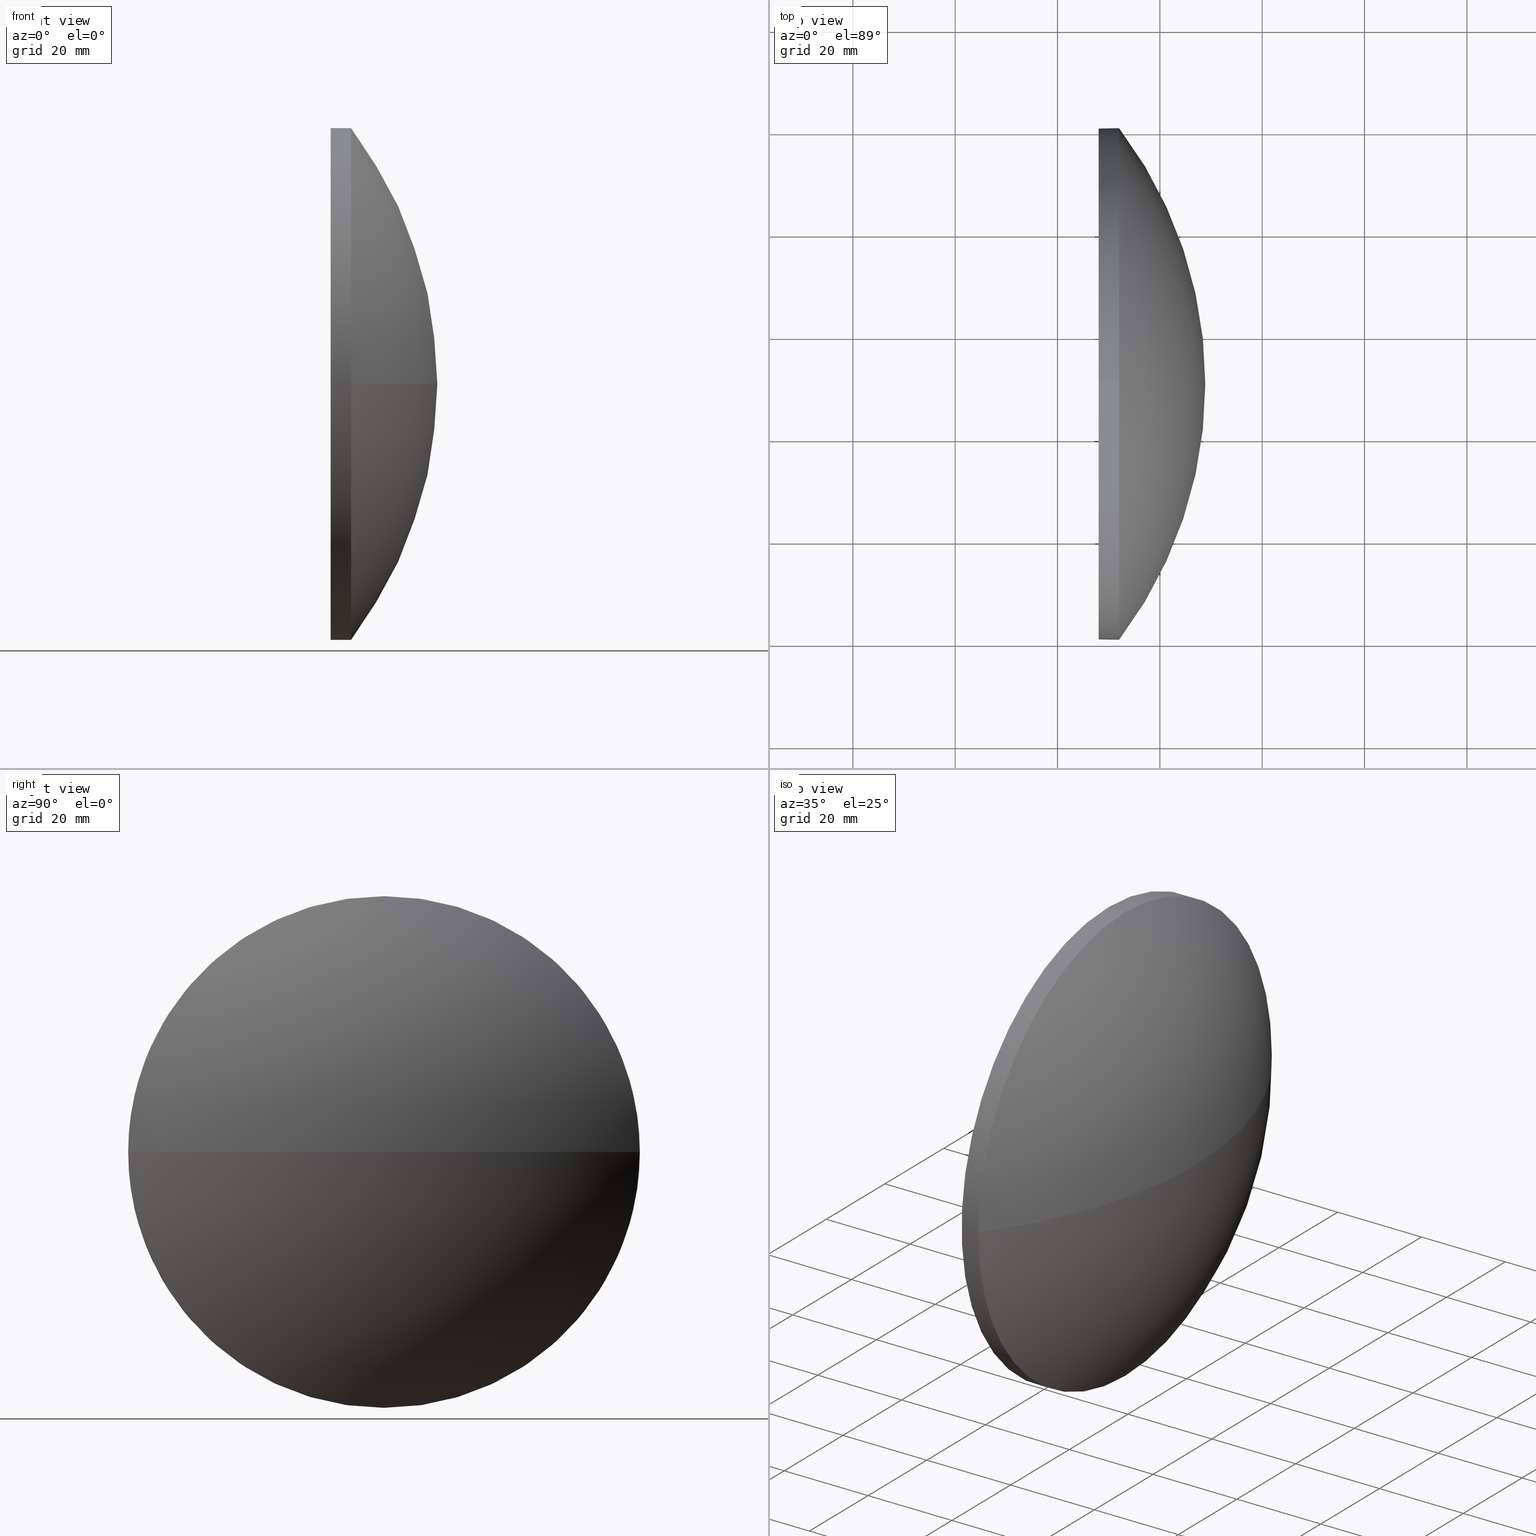
[diagram: canonical four-view strip — front | top / right | iso, engineering-drawing reading convention]
A machine part, canonical four-view strip (front | top / right | iso — engineering-drawing reading convention). The complete STEP part file that produces these views, byte-faithful:
ISO-10303-21;
HEADER;
FILE_DESCRIPTION (( 'STEP AP214' ),
    '1' );
FILE_NAME ('100083.STEP',
    '2019-05-13T01:20:34',
    ( '' ),
    ( '' ),
    'SwSTEP 2.0',
    'SolidWorks 2016',
    '' );
FILE_SCHEMA (( 'AUTOMOTIVE_DESIGN' ));
ENDSEC;

DATA;
#1 = SURFACE_STYLE_FILL_AREA ( #58 ) ;
#2 = DIRECTION ( 'NONE',  ( 0.0000000000000000000, 0.0000000000000000000, 1.000000000000000000 ) ) ;
#3 = ORIENTED_EDGE ( 'NONE', *, *, #22, .T. ) ;
#4 = ORIENTED_EDGE ( 'NONE', *, *, #33, .F. ) ;
#5 = AXIS2_PLACEMENT_3D ( 'NONE', #85, #70, #136 ) ;
#6 = CIRCLE ( 'NONE', #172, 49.99999999999999300 ) ;
#7 = PRODUCT_DEFINITION_FORMATION_WITH_SPECIFIED_SOURCE ( '�κ�', '', #158, .NOT_KNOWN. ) ;
#8 = VERTEX_POINT ( 'NONE', #71 ) ;
#9 =( NAMED_UNIT ( * ) PLANE_ANGLE_UNIT ( ) SI_UNIT ( $, .RADIAN. ) );
#10 = SURFACE_SIDE_STYLE ('',( #1 ) ) ;
#11 = AXIS2_PLACEMENT_3D ( 'NONE', #26, #122, #140 ) ;
#12 = PRODUCT_DEFINITION_SHAPE ( 'NONE', 'NONE',  #103 ) ;
#13 = FILL_AREA_STYLE ('',( #114 ) ) ;
#14 = VERTEX_POINT ( 'NONE', #164 ) ;
#15 = APPLICATION_CONTEXT ( 'automotive_design' ) ;
#16 =( NAMED_UNIT ( * ) SI_UNIT ( $, .STERADIAN. ) SOLID_ANGLE_UNIT ( ) );
#17 = CARTESIAN_POINT ( 'NONE',  ( 589.4330370124314400, 50.38150423912338700, 0.0000000000000000000 ) ) ;
#18 = CARTESIAN_POINT ( 'NONE',  ( 0.0000000000000000000, 0.0000000000000000000, 0.0000000000000000000 ) ) ;
#19 = AXIS2_PLACEMENT_3D ( 'NONE', #154, #179, #45 ) ;
#20 = DIRECTION ( 'NONE',  ( -0.0000000000000000000, 0.0000000000000000000, -1.000000000000000000 ) ) ;
#21 = PRESENTATION_LAYER_ASSIGNMENT (  '', '', ( #182 ) ) ;
#22 = EDGE_CURVE ( 'NONE', #112, #8, #82, .T. ) ;
#23 =( GEOMETRIC_REPRESENTATION_CONTEXT ( 3 ) GLOBAL_UNCERTAINTY_ASSIGNED_CONTEXT ( ( #89 ) ) GLOBAL_UNIT_ASSIGNED_CONTEXT ( ( #47, #128, #184 ) ) REPRESENTATION_CONTEXT ( 'NONE', 'WORKASPACE' ) );
#24 = DIRECTION ( 'NONE',  ( -1.000000000000000000, -0.0000000000000000000, -0.0000000000000000000 ) ) ;
#25 = VECTOR ( 'NONE', #66, 1000.000000000000000 ) ;
#26 = CARTESIAN_POINT ( 'NONE',  ( 589.4330370124314400, 50.38150423912338700, 0.0000000000000000000 ) ) ;
#27 = DIRECTION ( 'NONE',  ( -0.0000000000000000000, 0.0000000000000000000, 1.000000000000000000 ) ) ;
#28 = STYLED_ITEM ( 'NONE', ( #142 ), #97 ) ;
#29 = AXIS2_PLACEMENT_3D ( 'NONE', #173, #119, #51 ) ;
#30 = APPLICATION_CONTEXT ( 'automotive_design' ) ;
#31 = DIRECTION ( 'NONE',  ( -1.000000000000000000, -0.0000000000000000000, -0.0000000000000000000 ) ) ;
#32 = DIRECTION ( 'NONE',  ( 0.0000000000000000000, 0.0000000000000000000, 1.000000000000000000 ) ) ;
#33 = EDGE_CURVE ( 'NONE', #177, #112, #183, .T. ) ;
#34 = EDGE_LOOP ( 'NONE', ( #134, #42, #146, #170 ) ) ;
#35 = AXIS2_PLACEMENT_3D ( 'NONE', #18, #141, #156 ) ;
#36 = CIRCLE ( 'NONE', #29, 49.99999999999999300 ) ;
#37 = EDGE_LOOP ( 'NONE', ( #75, #96, #149, #99 ) ) ;
#38 = PRESENTATION_LAYER_ASSIGNMENT (  '', '', ( #28 ) ) ;
#39 = CIRCLE ( 'NONE', #73, 49.99999999999999300 ) ;
#40 = MECHANICAL_DESIGN_GEOMETRIC_PRESENTATION_REPRESENTATION (  '', ( #182 ), #53 ) ;
#41 = EDGE_LOOP ( 'NONE', ( #4, #79, #120, #106, #167 ) ) ;
#42 = ORIENTED_EDGE ( 'NONE', *, *, #138, .T. ) ;
#43 = EDGE_CURVE ( 'NONE', #8, #112, #78, .T. ) ;
#44 = DIRECTION ( 'NONE',  ( 1.000000000000000000, 0.0000000000000000000, 0.0000000000000000000 ) ) ;
#45 = DIRECTION ( 'NONE',  ( 0.0000000000000000000, 0.0000000000000000000, -1.000000000000000000 ) ) ;
#46 = SPHERICAL_SURFACE ( 'NONE', #5, 82.60897626112760900 ) ;
#47 =( LENGTH_UNIT ( ) NAMED_UNIT ( * ) SI_UNIT ( .MILLI., .METRE. ) );
#48 = SURFACE_STYLE_USAGE ( .BOTH. , #111 ) ;
#49 = ORIENTED_EDGE ( 'NONE', *, *, #33, .T. ) ;
#50 = ADVANCED_FACE ( 'NONE', ( #115 ), #46, .T. ) ;
#51 = DIRECTION ( 'NONE',  ( 0.0000000000000000000, 0.0000000000000000000, 1.000000000000000000 ) ) ;
#52 = AXIS2_PLACEMENT_3D ( 'NONE', #93, #105, #151 ) ;
#53 =( GEOMETRIC_REPRESENTATION_CONTEXT ( 3 ) GLOBAL_UNCERTAINTY_ASSIGNED_CONTEXT ( ( #132 ) ) GLOBAL_UNIT_ASSIGNED_CONTEXT ( ( #168, #155, #16 ) ) REPRESENTATION_CONTEXT ( 'NONE', 'WORKASPACE' ) );
#54 = SURFACE_STYLE_FILL_AREA ( #13 ) ;
#55 = DIRECTION ( 'NONE',  ( 0.0000000000000000000, 1.224646799147353200E-016, -1.000000000000000000 ) ) ;
#56 = ORIENTED_EDGE ( 'NONE', *, *, #102, .F. ) ;
#57 = CARTESIAN_POINT ( 'NONE',  ( 546.2818195196480200, 50.38150423912338000, 0.0000000000000000000 ) ) ;
#58 = FILL_AREA_STYLE ('',( #94 ) ) ;
#59 = VERTEX_POINT ( 'NONE', #139 ) ;
#60 = COLOUR_RGB ( '',1.000000000000000000, 1.000000000000000000, 1.000000000000000000 ) ;
#61 = DIRECTION ( 'NONE',  ( 0.0000000000000000000, 0.0000000000000000000, 1.000000000000000000 ) ) ;
#62 = ADVANCED_FACE ( 'NONE', ( #131 ), #124, .F. ) ;
#63 = DIRECTION ( 'NONE',  ( 0.0000000000000000000, 0.0000000000000000000, 1.000000000000000000 ) ) ;
#64 = CARTESIAN_POINT ( 'NONE',  ( 612.0407957807756200, 50.38150423912338700, 0.0000000000000000000 ) ) ;
#65 = MECHANICAL_DESIGN_GEOMETRIC_PRESENTATION_REPRESENTATION (  '', ( #28 ), #133 ) ;
#66 = DIRECTION ( 'NONE',  ( -1.000000000000000000, -0.0000000000000000000, -0.0000000000000000000 ) ) ;
#67 = ORIENTED_EDGE ( 'NONE', *, *, #43, .T. ) ;
#68 = CIRCLE ( 'NONE', #135, 82.60897626112759400 ) ;
#69 = PRODUCT_RELATED_PRODUCT_CATEGORY ( 'part', '', ( #158 ) ) ;
#70 = DIRECTION ( 'NONE',  ( -0.0000000000000000000, 0.0000000000000000000, -1.000000000000000000 ) ) ;
#71 = CARTESIAN_POINT ( 'NONE',  ( 608.0407957807756200, 50.38150423912338700, 49.99999999999999300 ) ) ;
#72 =( LENGTH_UNIT ( ) NAMED_UNIT ( * ) SI_UNIT ( .MILLI., .METRE. ) );
#73 = AXIS2_PLACEMENT_3D ( 'NONE', #64, #127, #61 ) ;
#74 = APPLICATION_PROTOCOL_DEFINITION ( 'draft international standard', 'automotive_design', 1998, #15 ) ;
#75 = ORIENTED_EDGE ( 'NONE', *, *, #138, .F. ) ;
#76 = COLOUR_RGB ( '',1.000000000000000000, 1.000000000000000000, 1.000000000000000000 ) ;
#77 = DIRECTION ( 'NONE',  ( 0.0000000000000000000, 1.000000000000000000, 0.0000000000000000000 ) ) ;
#78 = CIRCLE ( 'NONE', #52, 49.99999999999999300 ) ;
#79 = ORIENTED_EDGE ( 'NONE', *, *, #116, .T. ) ;
#80 = CARTESIAN_POINT ( 'NONE',  ( 546.2818195196480200, 50.38150423912338000, 0.0000000000000000000 ) ) ;
#81 = AXIS2_PLACEMENT_3D ( 'NONE', #144, #31, #32 ) ;
#82 = CIRCLE ( 'NONE', #157, 49.99999999999999300 ) ;
#83 = CARTESIAN_POINT ( 'NONE',  ( 608.0407957807756200, 50.38150423912338700, 0.0000000000000000000 ) ) ;
#84 = ORIENTED_EDGE ( 'NONE', *, *, #43, .F. ) ;
#85 = CARTESIAN_POINT ( 'NONE',  ( 546.2818195196480200, 50.38150423912338000, 0.0000000000000000000 ) ) ;
#86 = CARTESIAN_POINT ( 'NONE',  ( 612.0407957807756200, 100.3815042391234000, 0.0000000000000000000 ) ) ;
#87 = SPHERICAL_SURFACE ( 'NONE', #163, 82.60897626112760900 ) ;
#88 = AXIS2_PLACEMENT_3D ( 'NONE', #57, #27, #44 ) ;
#89 = UNCERTAINTY_MEASURE_WITH_UNIT (LENGTH_MEASURE( 1.000000000000000100E-005 ), #47, 'distance_accuracy_value', 'NONE');
#90 = EDGE_LOOP ( 'NONE', ( #145, #49, #84, #56, #108 ) ) ;
#91 = DIRECTION ( 'NONE',  ( -1.000000000000000000, -0.0000000000000000000, -0.0000000000000000000 ) ) ;
#92 = CARTESIAN_POINT ( 'NONE',  ( 589.4330370124314400, 50.38150423912339400, -49.99999999999999300 ) ) ;
#93 = CARTESIAN_POINT ( 'NONE',  ( 608.0407957807756200, 50.38150423912338700, 0.0000000000000000000 ) ) ;
#94 = FILL_AREA_STYLE_COLOUR ( '', #76 ) ;
#95 = CARTESIAN_POINT ( 'NONE',  ( 628.8907957807756500, 50.38150423912338700, 0.0000000000000000000 ) ) ;
#96 = ORIENTED_EDGE ( 'NONE', *, *, #123, .T. ) ;
#97 = MANIFOLD_SOLID_BREP ( '��ת1', #185 ) ;
#98 = ADVANCED_FACE ( 'NONE', ( #148 ), #104, .T. ) ;
#99 = ORIENTED_EDGE ( 'NONE', *, *, #165, .F. ) ;
#100 = CARTESIAN_POINT ( 'NONE',  ( 589.4330370124314400, 50.38150423912338700, 49.99999999999999300 ) ) ;
#101 = EDGE_LOOP ( 'NONE', ( #67, #3 ) ) ;
#102 = EDGE_CURVE ( 'NONE', #59, #8, #176, .T. ) ;
#103 = PRODUCT_DEFINITION ( 'δ֪', '', #7, #171 ) ;
#104 = CYLINDRICAL_SURFACE ( 'NONE', #11, 49.99999999999999300 ) ;
#105 = DIRECTION ( 'NONE',  ( -1.000000000000000000, -0.0000000000000000000, -0.0000000000000000000 ) ) ;
#106 = ORIENTED_EDGE ( 'NONE', *, *, #102, .T. ) ;
#107 =( NAMED_UNIT ( * ) SI_UNIT ( $, .STERADIAN. ) SOLID_ANGLE_UNIT ( ) );
#108 = ORIENTED_EDGE ( 'NONE', *, *, #180, .T. ) ;
#109 = SURFACE_STYLE_USAGE ( .BOTH. , #10 ) ;
#110 = FACE_OUTER_BOUND ( 'NONE', #41, .T. ) ;
#111 = SURFACE_SIDE_STYLE ('',( #54 ) ) ;
#112 = VERTEX_POINT ( 'NONE', #118 ) ;
#113 = ADVANCED_FACE ( 'NONE', ( #159 ), #87, .T. ) ;
#114 = FILL_AREA_STYLE_COLOUR ( '', #60 ) ;
#115 = FACE_OUTER_BOUND ( 'NONE', #37, .T. ) ;
#116 = EDGE_CURVE ( 'NONE', #177, #14, #6, .T. ) ;
#117 = CYLINDRICAL_SURFACE ( 'NONE', #166, 49.99999999999999300 ) ;
#118 = CARTESIAN_POINT ( 'NONE',  ( 608.0407957807756200, 50.38150423912339400, -49.99999999999999300 ) ) ;
#119 = DIRECTION ( 'NONE',  ( -1.000000000000000000, -0.0000000000000000000, -0.0000000000000000000 ) ) ;
#120 = ORIENTED_EDGE ( 'NONE', *, *, #165, .T. ) ;
#121 = CIRCLE ( 'NONE', #81, 49.99999999999999300 ) ;
#122 = DIRECTION ( 'NONE',  ( -1.000000000000000000, -0.0000000000000000000, -0.0000000000000000000 ) ) ;
#123 = EDGE_CURVE ( 'NONE', #152, #174, #181, .T. ) ;
#124 = PLANE ( 'NONE',  #19 ) ;
#125 = APPLICATION_PROTOCOL_DEFINITION ( 'draft international standard', 'automotive_design', 1998, #30 ) ;
#126 = VECTOR ( 'NONE', #178, 1000.000000000000000 ) ;
#127 = DIRECTION ( 'NONE',  ( -1.000000000000000000, -0.0000000000000000000, -0.0000000000000000000 ) ) ;
#128 =( NAMED_UNIT ( * ) PLANE_ANGLE_UNIT ( ) SI_UNIT ( $, .RADIAN. ) );
#129 = DIRECTION ( 'NONE',  ( -1.000000000000000000, -0.0000000000000000000, -0.0000000000000000000 ) ) ;
#130 = ADVANCED_BREP_SHAPE_REPRESENTATION ( '100083', ( #97, #35 ), #23 ) ;
#131 = FACE_OUTER_BOUND ( 'NONE', #101, .T. ) ;
#132 = UNCERTAINTY_MEASURE_WITH_UNIT (LENGTH_MEASURE( 1.000000000000000100E-005 ), #168, 'distance_accuracy_value', 'NONE');
#133 =( GEOMETRIC_REPRESENTATION_CONTEXT ( 3 ) GLOBAL_UNCERTAINTY_ASSIGNED_CONTEXT ( ( #153 ) ) GLOBAL_UNIT_ASSIGNED_CONTEXT ( ( #72, #9, #107 ) ) REPRESENTATION_CONTEXT ( 'NONE', 'WORKASPACE' ) );
#134 = ORIENTED_EDGE ( 'NONE', *, *, #123, .F. ) ;
#135 = AXIS2_PLACEMENT_3D ( 'NONE', #80, #55, #150 ) ;
#136 = DIRECTION ( 'NONE',  ( 0.0000000000000000000, 1.000000000000000000, 0.0000000000000000000 ) ) ;
#137 = DIRECTION ( 'NONE',  ( 0.0000000000000000000, 0.0000000000000000000, 1.000000000000000000 ) ) ;
#138 = EDGE_CURVE ( 'NONE', #152, #14, #68, .T. ) ;
#139 = CARTESIAN_POINT ( 'NONE',  ( 612.0407957807756200, 50.38150423912338700, 49.99999999999999300 ) ) ;
#140 = DIRECTION ( 'NONE',  ( 0.0000000000000000000, 0.0000000000000000000, 1.000000000000000000 ) ) ;
#141 = DIRECTION ( 'NONE',  ( 0.0000000000000000000, 0.0000000000000000000, 1.000000000000000000 ) ) ;
#142 = PRESENTATION_STYLE_ASSIGNMENT (( #109 ) ) ;
#143 = PRODUCT_CONTEXT ( 'NONE', #30, 'mechanical' ) ;
#144 = CARTESIAN_POINT ( 'NONE',  ( 612.0407957807756200, 50.38150423912338700, 0.0000000000000000000 ) ) ;
#145 = ORIENTED_EDGE ( 'NONE', *, *, #162, .T. ) ;
#146 = ORIENTED_EDGE ( 'NONE', *, *, #116, .F. ) ;
#147 = CARTESIAN_POINT ( 'NONE',  ( 546.2818195196480200, 50.38150423912338000, 0.0000000000000000000 ) ) ;
#148 = FACE_OUTER_BOUND ( 'NONE', #90, .T. ) ;
#149 = ORIENTED_EDGE ( 'NONE', *, *, #180, .F. ) ;
#150 = DIRECTION ( 'NONE',  ( 0.0000000000000000000, 1.000000000000000000, 1.224646799147353500E-016 ) ) ;
#151 = DIRECTION ( 'NONE',  ( 0.0000000000000000000, 0.0000000000000000000, 1.000000000000000000 ) ) ;
#152 = VERTEX_POINT ( 'NONE', #95 ) ;
#153 = UNCERTAINTY_MEASURE_WITH_UNIT (LENGTH_MEASURE( 1.000000000000000100E-005 ), #72, 'distance_accuracy_value', 'NONE');
#154 = CARTESIAN_POINT ( 'NONE',  ( 608.0407957807756200, 50.38150423912338700, 0.0000000000000000000 ) ) ;
#155 =( NAMED_UNIT ( * ) PLANE_ANGLE_UNIT ( ) SI_UNIT ( $, .RADIAN. ) );
#156 = DIRECTION ( 'NONE',  ( 1.000000000000000000, 0.0000000000000000000, 0.0000000000000000000 ) ) ;
#157 = AXIS2_PLACEMENT_3D ( 'NONE', #83, #24, #137 ) ;
#158 = PRODUCT ( '100083', '100083', '', ( #143 ) ) ;
#159 = FACE_OUTER_BOUND ( 'NONE', #34, .T. ) ;
#160 = CARTESIAN_POINT ( 'NONE',  ( 612.0407957807756200, 50.38150423912338700, 0.0000000000000000000 ) ) ;
#161 = SHAPE_DEFINITION_REPRESENTATION ( #12, #130 ) ;
#162 = EDGE_CURVE ( 'NONE', #174, #177, #36, .T. ) ;
#163 = AXIS2_PLACEMENT_3D ( 'NONE', #147, #20, #77 ) ;
#164 = CARTESIAN_POINT ( 'NONE',  ( 612.0407957807756200, 0.3815042391233786100, -6.123233995736766100E-015 ) ) ;
#165 = EDGE_CURVE ( 'NONE', #14, #59, #121, .T. ) ;
#166 = AXIS2_PLACEMENT_3D ( 'NONE', #17, #129, #63 ) ;
#167 = ORIENTED_EDGE ( 'NONE', *, *, #22, .F. ) ;
#168 =( LENGTH_UNIT ( ) NAMED_UNIT ( * ) SI_UNIT ( .MILLI., .METRE. ) );
#169 = ADVANCED_FACE ( 'NONE', ( #110 ), #117, .T. ) ;
#170 = ORIENTED_EDGE ( 'NONE', *, *, #162, .F. ) ;
#171 = PRODUCT_DEFINITION_CONTEXT ( 'detailed design', #15, 'design' ) ;
#172 = AXIS2_PLACEMENT_3D ( 'NONE', #160, #91, #2 ) ;
#173 = CARTESIAN_POINT ( 'NONE',  ( 612.0407957807756200, 50.38150423912338700, 0.0000000000000000000 ) ) ;
#174 = VERTEX_POINT ( 'NONE', #86 ) ;
#175 = PRESENTATION_STYLE_ASSIGNMENT (( #48 ) ) ;
#176 = LINE ( 'NONE', #100, #25 ) ;
#177 = VERTEX_POINT ( 'NONE', #186 ) ;
#178 = DIRECTION ( 'NONE',  ( -1.000000000000000000, -0.0000000000000000000, -0.0000000000000000000 ) ) ;
#179 = DIRECTION ( 'NONE',  ( 1.000000000000000000, 0.0000000000000000000, 0.0000000000000000000 ) ) ;
#180 = EDGE_CURVE ( 'NONE', #59, #174, #39, .T. ) ;
#181 = CIRCLE ( 'NONE', #88, 82.60897626112762300 ) ;
#182 = STYLED_ITEM ( 'NONE', ( #175 ), #130 ) ;
#183 = LINE ( 'NONE', #92, #126 ) ;
#184 =( NAMED_UNIT ( * ) SI_UNIT ( $, .STERADIAN. ) SOLID_ANGLE_UNIT ( ) );
#185 = CLOSED_SHELL ( 'NONE', ( #98, #113, #50, #169, #62 ) ) ;
#186 = CARTESIAN_POINT ( 'NONE',  ( 612.0407957807756200, 50.38150423912339400, -49.99999999999999300 ) ) ;
ENDSEC;
END-ISO-10303-21;
